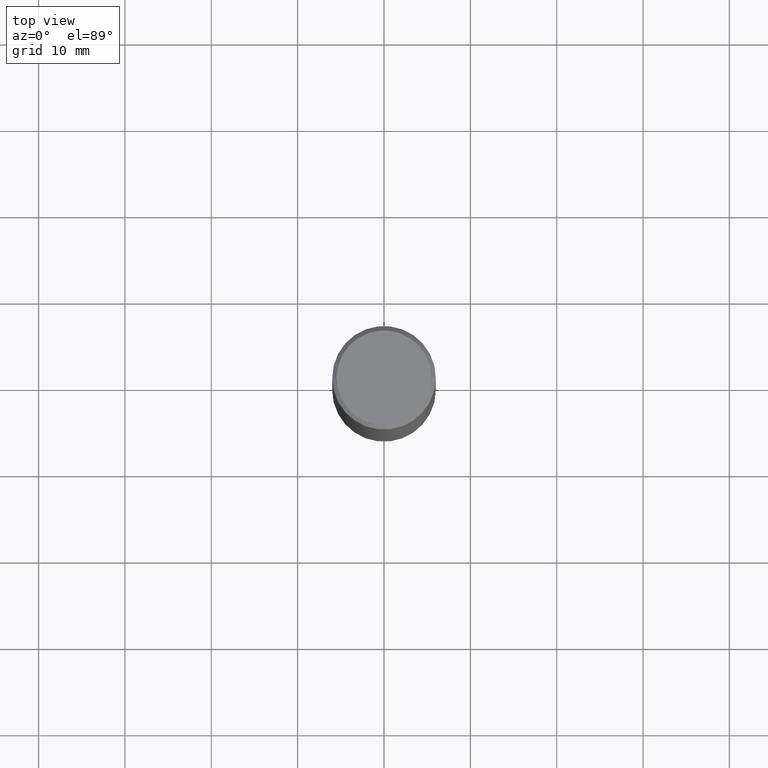
[diagram: clean part render]
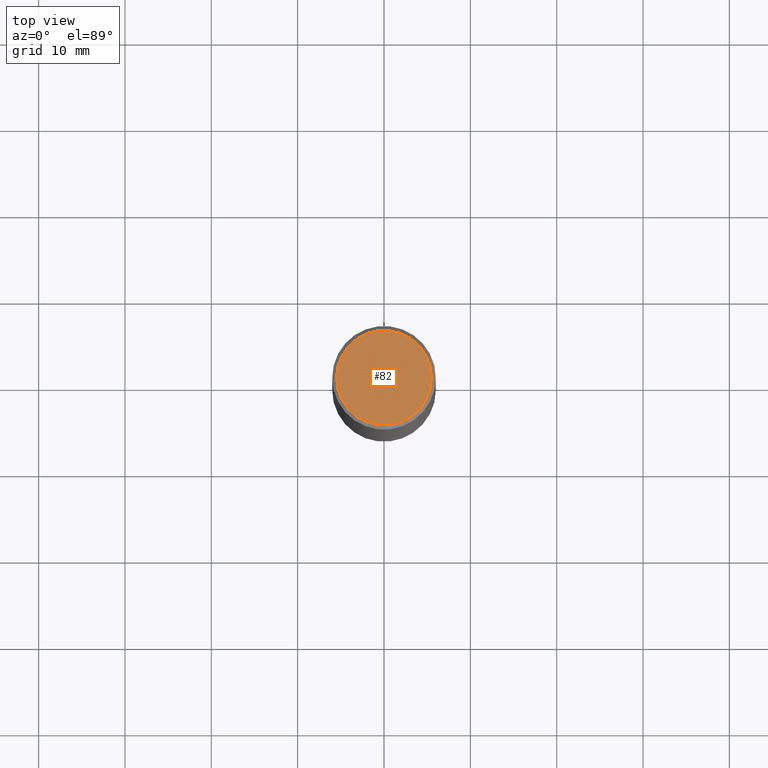
[diagram: same view with one face highlighted and labeled with its STEP entity id]
A machine part, top view. The second image highlights one B-rep face of the part: STEP entity #82.
In plain terms, the highlighted planar face has unit normal (0, -0, -1).
Its self-contained STEP definition (entity closure, byte-faithful):
#8 = CARTESIAN_POINT ( 'NONE',  ( 0.2161999999999998368, -1.586759460484351002E-15, 1.451294246634248118E-16 ) ) ;
#27 = EDGE_CURVE ( 'NONE', #37, #336, #387, .T. ) ;
#37 = VERTEX_POINT ( 'NONE', #411 ) ;
#44 = AXIS2_PLACEMENT_3D ( 'NONE', #224, #232, #197 ) ;
#47 = CARTESIAN_POINT ( 'NONE',  ( -3.549094808739746881E-45, 5.067166779293519988E-31, 1.451294246634139896E-16 ) ) ;
#55 = DIRECTION ( 'NONE',  ( 1.000000000000000000, -6.982962677686266711E-15, 4.881916136609865378E-29 ) ) ;
#82 = ADVANCED_FACE ( 'NONE', ( #288 ), #313, .F. ) ;
#107 = EDGE_LOOP ( 'NONE', ( #212, #251 ) ) ;
#117 = DIRECTION ( 'NONE',  ( -2.445468806185136597E-29, 3.491481338843145583E-15, 1.000000000000000000 ) ) ;
#135 = CIRCLE ( 'NONE', #366, 0.2161999999999998368 ) ;
#139 = DIRECTION ( 'NONE',  ( 1.000000000000000000, -6.982962677686266711E-15, 4.881916136609865378E-29 ) ) ;
#197 = DIRECTION ( 'NONE',  ( -1.000000000000000000, 6.982962677686265922E-15, -4.876176775795935793E-29 ) ) ;
#212 = ORIENTED_EDGE ( 'NONE', *, *, #27, .T. ) ;
#224 = CARTESIAN_POINT ( 'NONE',  ( 1.509716530915769534E-15, 0.2161999999999998368, -6.822935531261805704E-16 ) ) ;
#232 = DIRECTION ( 'NONE',  ( 2.438088387897960049E-29, -3.491481338843145188E-15, -1.000000000000000000 ) ) ;
#251 = ORIENTED_EDGE ( 'NONE', *, *, #337, .T. ) ;
#269 = DIRECTION ( 'NONE',  ( -2.445468806185136597E-29, 3.491481338843145583E-15, 1.000000000000000000 ) ) ;
#288 = FACE_OUTER_BOUND ( 'NONE', #107, .T. ) ;
#313 = PLANE ( 'NONE',  #44 ) ;
#336 = VERTEX_POINT ( 'NONE', #8 ) ;
#337 = EDGE_CURVE ( 'NONE', #336, #37, #135, .T. ) ;
#363 = CARTESIAN_POINT ( 'NONE',  ( -3.549094808739746881E-45, 5.067166779293519988E-31, 1.451294246634139896E-16 ) ) ;
#366 = AXIS2_PLACEMENT_3D ( 'NONE', #47, #269, #139 ) ;
#387 = CIRCLE ( 'NONE', #392, 0.2161999999999998368 ) ;
#392 = AXIS2_PLACEMENT_3D ( 'NONE', #363, #117, #55 ) ;
#411 = CARTESIAN_POINT ( 'NONE',  ( -0.2161999999999998368, 1.544631344304201775E-15, 1.451294246634033154E-16 ) ) ;